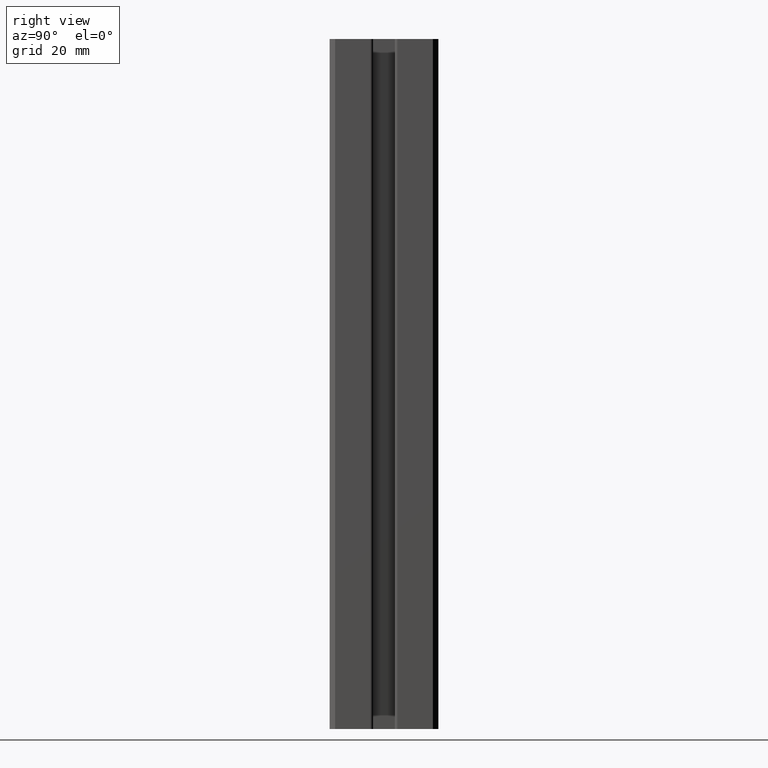
[diagram: clean part render]
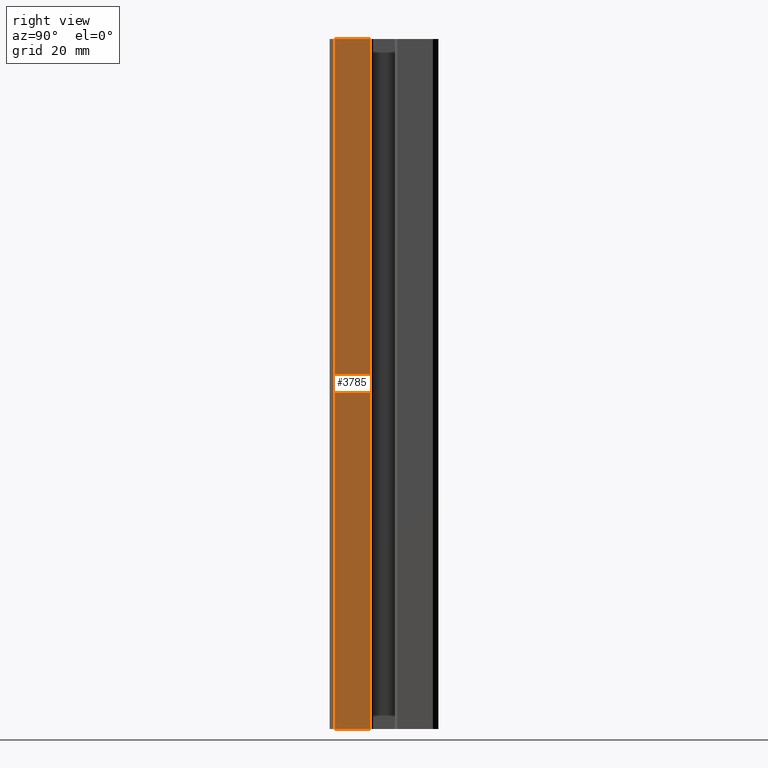
[diagram: same view with one face highlighted and labeled with its STEP entity id]
A machine part, right view. The second image highlights one B-rep face of the part: STEP entity #3785.
In plain terms, the highlighted planar face has unit normal (-1, 0, 0).
Its self-contained STEP definition (entity closure, byte-faithful):
#54 = DIRECTION ( 'NONE',  ( -0.000000000000000000, -0.000000000000000000, -1.000000000000000000 ) ) ;
#203 = EDGE_CURVE ( 'NONE', #2409, #902, #3345, .T. ) ;
#469 = FACE_OUTER_BOUND ( 'NONE', #1683, .T. ) ;
#692 = PLANE ( 'NONE',  #3147 ) ;
#725 = CARTESIAN_POINT ( 'NONE',  ( 40.00000000000000711, -18.00025543330288613, 127.0000000000000000 ) ) ;
#843 = VERTEX_POINT ( 'NONE', #3363 ) ;
#902 = VERTEX_POINT ( 'NONE', #2227 ) ;
#1069 = DIRECTION ( 'NONE',  ( -1.000000000000000000, 1.734723475976807094E-16, 0.000000000000000000 ) ) ;
#1130 = VERTEX_POINT ( 'NONE', #2992 ) ;
#1153 = LINE ( 'NONE', #3280, #1794 ) ;
#1683 = EDGE_LOOP ( 'NONE', ( #1743, #2004, #3756, #2711 ) ) ;
#1728 = DIRECTION ( 'NONE',  ( 1.734723475976807094E-16, 1.000000000000000000, 0.000000000000000000 ) ) ;
#1743 = ORIENTED_EDGE ( 'NONE', *, *, #2986, .T. ) ;
#1794 = VECTOR ( 'NONE', #1728, 1000.000000000000000 ) ;
#1856 = VECTOR ( 'NONE', #3976, 1000.000000000000000 ) ;
#2004 = ORIENTED_EDGE ( 'NONE', *, *, #203, .T. ) ;
#2101 = CARTESIAN_POINT ( 'NONE',  ( 40.00000000000000711, -5.043292649634259384, 127.0000000000000000 ) ) ;
#2227 = CARTESIAN_POINT ( 'NONE',  ( 40.00000000000000711, -5.043292649634259384, 127.0000000000000000 ) ) ;
#2394 = VECTOR ( 'NONE', #3281, 1000.000000000000000 ) ;
#2409 = VERTEX_POINT ( 'NONE', #2988 ) ;
#2711 = ORIENTED_EDGE ( 'NONE', *, *, #2730, .T. ) ;
#2730 = EDGE_CURVE ( 'NONE', #843, #1130, #3764, .T. ) ;
#2746 = CARTESIAN_POINT ( 'NONE',  ( 40.00000000000000711, -6.938893903907229955E-15, -127.0000000000000000 ) ) ;
#2902 = DIRECTION ( 'NONE',  ( -1.734723475976807094E-16, -1.000000000000000000, 0.000000000000000000 ) ) ;
#2986 = EDGE_CURVE ( 'NONE', #1130, #2409, #3038, .T. ) ;
#2988 = CARTESIAN_POINT ( 'NONE',  ( 40.00000000000000711, -5.043292649634259384, -127.0000000000000000 ) ) ;
#2992 = CARTESIAN_POINT ( 'NONE',  ( 40.00000000000000711, -18.00025543330288613, -127.0000000000000000 ) ) ;
#3038 = LINE ( 'NONE', #2746, #1856 ) ;
#3147 = AXIS2_PLACEMENT_3D ( 'NONE', #3179, #1069, #2902 ) ;
#3179 = CARTESIAN_POINT ( 'NONE',  ( 40.00000000000000711, -6.938893903907229955E-15, 127.0000000000000000 ) ) ;
#3280 = CARTESIAN_POINT ( 'NONE',  ( 40.00000000000000711, -6.938893903907229955E-15, 127.0000000000000000 ) ) ;
#3281 = DIRECTION ( 'NONE',  ( 0.000000000000000000, -0.000000000000000000, 1.000000000000000000 ) ) ;
#3345 = LINE ( 'NONE', #2101, #2394 ) ;
#3363 = CARTESIAN_POINT ( 'NONE',  ( 40.00000000000000711, -18.00025543330288613, 127.0000000000000000 ) ) ;
#3500 = VECTOR ( 'NONE', #54, 1000.000000000000000 ) ;
#3756 = ORIENTED_EDGE ( 'NONE', *, *, #3911, .F. ) ;
#3764 = LINE ( 'NONE', #725, #3500 ) ;
#3785 = ADVANCED_FACE ( 'NONE', ( #469 ), #692, .F. ) ;
#3911 = EDGE_CURVE ( 'NONE', #843, #902, #1153, .T. ) ;
#3976 = DIRECTION ( 'NONE',  ( 1.734723475976807094E-16, 1.000000000000000000, 0.000000000000000000 ) ) ;